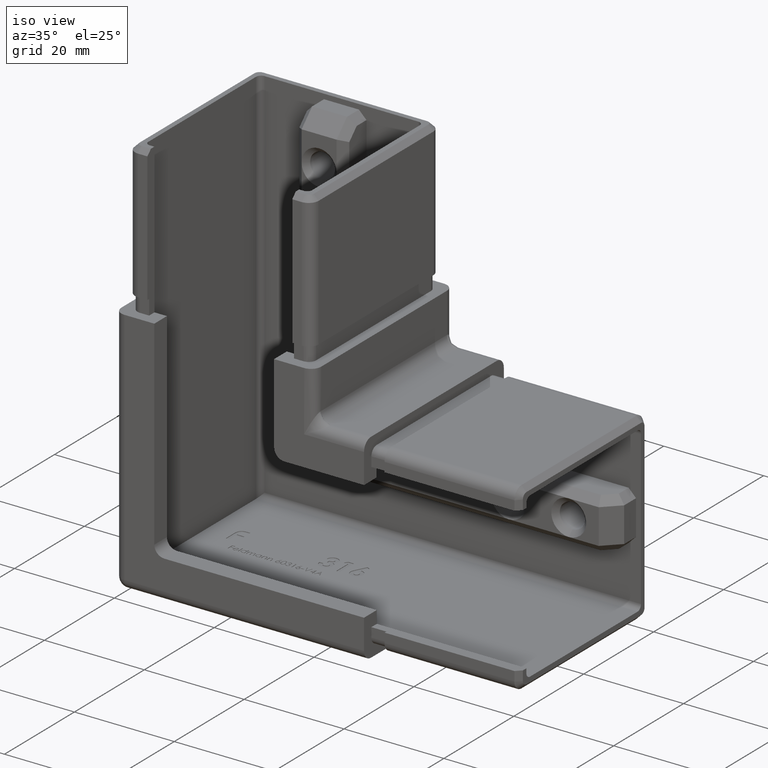
[diagram: clean part render]
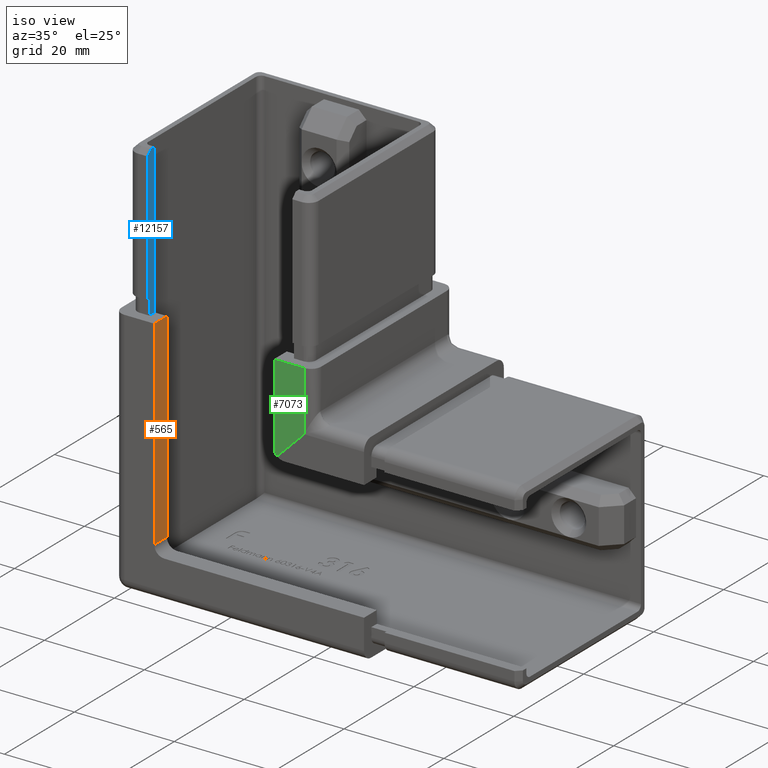
[diagram: same view with three faces highlighted in distinct colors, each labeled with its STEP entity id]
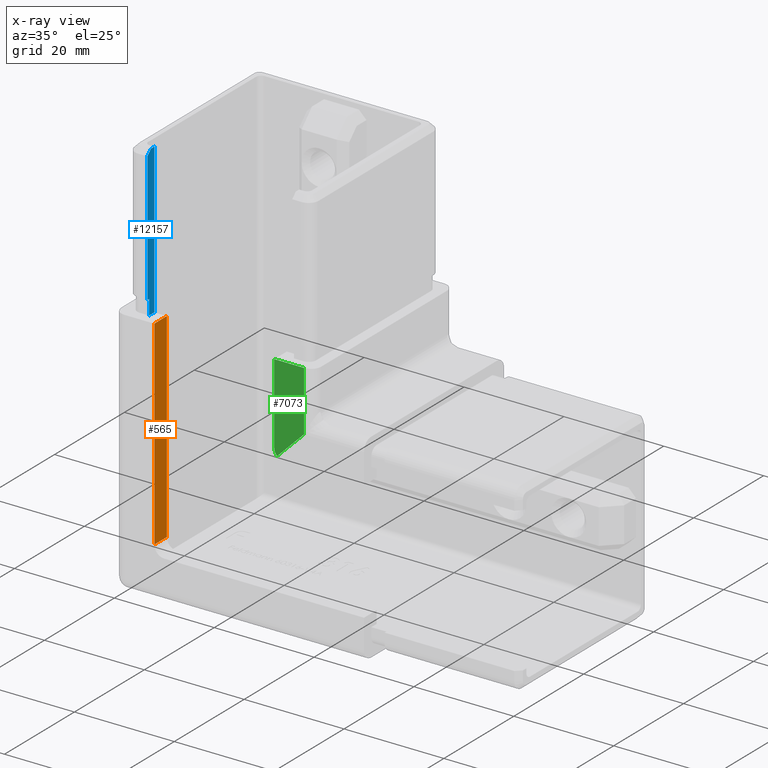
[diagram: x-ray of the same camera — body ghosted, the three highlighted faces saturated]
A machine part, iso view with three faces highlighted in distinct colors.
The next image is the same camera in x-ray (body ghosted, the three faces saturated) — at least one of them is partly hidden behind the body in this view.
Their STEP definitions:

[orange] entity #565 — the highlighted planar face has unit normal (1, 0, 0).
#197 = CARTESIAN_POINT ( 'NONE',  ( -12.00000000000000000, -36.40000000000000568, 30.00000000000000000 ) ) ;
#565 = ADVANCED_FACE ( 'NONE', ( #3925 ), #12228, .T. ) ;
#1209 = VECTOR ( 'NONE', #16442, 1000.000000000000000 ) ;
#1294 = ORIENTED_EDGE ( 'NONE', *, *, #18901, .T. ) ;
#3853 = ORIENTED_EDGE ( 'NONE', *, *, #7586, .T. ) ;
#3925 = FACE_OUTER_BOUND ( 'NONE', #18305, .T. ) ;
#4144 = LINE ( 'NONE', #7569, #14500 ) ;
#4630 = DIRECTION ( 'NONE',  ( 0.000000000000000000, 0.000000000000000000, -1.000000000000000000 ) ) ;
#4786 = DIRECTION ( 'NONE',  ( 0.000000000000000000, 0.000000000000000000, -1.000000000000000000 ) ) ;
#4854 = VECTOR ( 'NONE', #4786, 1000.000000000000000 ) ;
#5752 = VECTOR ( 'NONE', #5804, 1000.000000000000000 ) ;
#5804 = DIRECTION ( 'NONE',  ( 0.000000000000000000, -1.000000000000000000, 0.000000000000000000 ) ) ;
#6099 = LINE ( 'NONE', #7652, #1209 ) ;
#6637 = VERTEX_POINT ( 'NONE', #9075 ) ;
#7569 = CARTESIAN_POINT ( 'NONE',  ( -12.00000000000000000, -36.40000000000000568, -10.00000000000000178 ) ) ;
#7586 = EDGE_CURVE ( 'NONE', #11527, #19473, #6099, .T. ) ;
#7652 = CARTESIAN_POINT ( 'NONE',  ( -12.00000000000000000, -40.00000000000000000, 30.00000000000000000 ) ) ;
#7875 = LINE ( 'NONE', #10153, #5752 ) ;
#7878 = CARTESIAN_POINT ( 'NONE',  ( -12.00000000000000000, -40.00000000000000000, 30.00000000000000000 ) ) ;
#8851 = LINE ( 'NONE', #15351, #4854 ) ;
#8995 = AXIS2_PLACEMENT_3D ( 'NONE', #197, #18100, #4630 ) ;
#9075 = CARTESIAN_POINT ( 'NONE',  ( -12.00000000000000000, -36.40000000000000568, 30.00000000000000000 ) ) ;
#10153 = CARTESIAN_POINT ( 'NONE',  ( -12.00000000000000000, -36.40000000000000568, 30.00000000000000000 ) ) ;
#10919 = VERTEX_POINT ( 'NONE', #14609 ) ;
#11527 = VERTEX_POINT ( 'NONE', #7878 ) ;
#12228 = PLANE ( 'NONE',  #8995 ) ;
#12785 = ORIENTED_EDGE ( 'NONE', *, *, #14354, .T. ) ;
#13530 = DIRECTION ( 'NONE',  ( 0.000000000000000000, 1.000000000000000000, -0.000000000000000000 ) ) ;
#13815 = EDGE_CURVE ( 'NONE', #6637, #10919, #8851, .T. ) ;
#14044 = ORIENTED_EDGE ( 'NONE', *, *, #13815, .F. ) ;
#14354 = EDGE_CURVE ( 'NONE', #19473, #10919, #4144, .T. ) ;
#14500 = VECTOR ( 'NONE', #13530, 1000.000000000000000 ) ;
#14609 = CARTESIAN_POINT ( 'NONE',  ( -12.00000000000000000, -36.40000000000000568, -10.00000000000000178 ) ) ;
#14853 = CARTESIAN_POINT ( 'NONE',  ( -12.00000000000000000, -40.00000000000000000, -10.00000000000000178 ) ) ;
#15351 = CARTESIAN_POINT ( 'NONE',  ( -12.00000000000000000, -36.40000000000000568, 30.00000000000000000 ) ) ;
#16442 = DIRECTION ( 'NONE',  ( 0.000000000000000000, 0.000000000000000000, -1.000000000000000000 ) ) ;
#18100 = DIRECTION ( 'NONE',  ( 1.000000000000000000, 0.000000000000000000, 0.000000000000000000 ) ) ;
#18305 = EDGE_LOOP ( 'NONE', ( #3853, #12785, #14044, #1294 ) ) ;
#18901 = EDGE_CURVE ( 'NONE', #6637, #11527, #7875, .T. ) ;
#19473 = VERTEX_POINT ( 'NONE', #14853 ) ;

[blue] entity #12157 — the highlighted planar face has unit normal (-1, 0, 0).
#7 = LINE ( 'NONE', #7258, #15524 ) ;
#172 = CARTESIAN_POINT ( 'NONE',  ( -14.49999999999999822, -38.40000000000001279, 58.99999999999999289 ) ) ;
#584 = CARTESIAN_POINT ( 'NONE',  ( -14.49999999999999822, -36.40000000000000568, 60.00000000000000000 ) ) ;
#1106 = LINE ( 'NONE', #14181, #8656 ) ;
#1169 = DIRECTION ( 'NONE',  ( -0.000000000000000000, -0.000000000000000000, -1.000000000000000000 ) ) ;
#1186 = DIRECTION ( 'NONE',  ( 0.000000000000000000, 0.000000000000000000, 1.000000000000000000 ) ) ;
#1637 = VECTOR ( 'NONE', #3469, 1000.000000000000000 ) ;
#1993 = CARTESIAN_POINT ( 'NONE',  ( -14.49999999999999822, -36.40000000000000568, 60.00000000000000000 ) ) ;
#2360 = LINE ( 'NONE', #1993, #1637 ) ;
#2465 = EDGE_LOOP ( 'NONE', ( #16844, #11641, #3373, #13791, #17770, #10610, #15420 ) ) ;
#3003 = CARTESIAN_POINT ( 'NONE',  ( -14.49999999999999822, -37.90000000000001279, 33.00000000000000000 ) ) ;
#3373 = ORIENTED_EDGE ( 'NONE', *, *, #10941, .T. ) ;
#3469 = DIRECTION ( 'NONE',  ( -0.000000000000000000, 1.000000000000000000, -0.000000000000000000 ) ) ;
#4378 = AXIS2_PLACEMENT_3D ( 'NONE', #5670, #17450, #1186 ) ;
#4447 = EDGE_CURVE ( 'NONE', #8680, #18215, #12741, .T. ) ;
#5407 = EDGE_CURVE ( 'NONE', #16689, #13790, #7, .T. ) ;
#5670 = CARTESIAN_POINT ( 'NONE',  ( -14.49999999999999822, -36.40000000000000568, 60.00000000000000000 ) ) ;
#5866 = LINE ( 'NONE', #13286, #17401 ) ;
#6398 = VECTOR ( 'NONE', #6781, 1000.000000000000000 ) ;
#6781 = DIRECTION ( 'NONE',  ( 0.000000000000000000, 0.000000000000000000, 1.000000000000000000 ) ) ;
#6831 = VECTOR ( 'NONE', #17611, 1000.000000000000000 ) ;
#7137 = CARTESIAN_POINT ( 'NONE',  ( -14.49999999999999822, -37.90000000000001279, 30.00000000000000000 ) ) ;
#7258 = CARTESIAN_POINT ( 'NONE',  ( -14.50000000000000000, -37.40000000000001279, 60.00000000000000000 ) ) ;
#7319 = DIRECTION ( 'NONE',  ( 0.000000000000000000, -0.7071067811865451302, -0.7071067811865500152 ) ) ;
#7798 = LINE ( 'NONE', #11887, #17671 ) ;
#8656 = VECTOR ( 'NONE', #17142, 1000.000000000000000 ) ;
#8680 = VERTEX_POINT ( 'NONE', #7137 ) ;
#9251 = EDGE_CURVE ( 'NONE', #15987, #18048, #7798, .T. ) ;
#9722 = CARTESIAN_POINT ( 'NONE',  ( -14.49999999999999822, -37.40000000000001279, 60.00000000000000000 ) ) ;
#9896 = EDGE_CURVE ( 'NONE', #16689, #15987, #2360, .T. ) ;
#10468 = VERTEX_POINT ( 'NONE', #13059 ) ;
#10610 = ORIENTED_EDGE ( 'NONE', *, *, #12368, .T. ) ;
#10799 = LINE ( 'NONE', #16147, #6831 ) ;
#10941 = EDGE_CURVE ( 'NONE', #13790, #10468, #5866, .T. ) ;
#11244 = EDGE_CURVE ( 'NONE', #18215, #10468, #10799, .T. ) ;
#11641 = ORIENTED_EDGE ( 'NONE', *, *, #5407, .T. ) ;
#11887 = CARTESIAN_POINT ( 'NONE',  ( -14.49999999999999822, -36.40000000000000568, 60.00000000000000000 ) ) ;
#12157 = ADVANCED_FACE ( 'NONE', ( #19238 ), #15924, .F. ) ;
#12368 = EDGE_CURVE ( 'NONE', #8680, #18048, #1106, .T. ) ;
#12661 = CARTESIAN_POINT ( 'NONE',  ( -14.49999999999999822, -36.40000000000000568, 30.00000000000000000 ) ) ;
#12740 = CARTESIAN_POINT ( 'NONE',  ( -14.49999999999999822, -37.90000000000001279, 60.00000000000000000 ) ) ;
#12741 = LINE ( 'NONE', #12740, #6398 ) ;
#13059 = CARTESIAN_POINT ( 'NONE',  ( -14.49999999999999822, -38.40000000000001279, 33.00000000000000000 ) ) ;
#13286 = CARTESIAN_POINT ( 'NONE',  ( -14.49999999999999822, -38.40000000000001279, 60.00000000000000000 ) ) ;
#13790 = VERTEX_POINT ( 'NONE', #172 ) ;
#13791 = ORIENTED_EDGE ( 'NONE', *, *, #11244, .F. ) ;
#14181 = CARTESIAN_POINT ( 'NONE',  ( -14.49999999999999822, -36.40000000000000568, 30.00000000000000000 ) ) ;
#14858 = DIRECTION ( 'NONE',  ( -0.000000000000000000, -0.000000000000000000, -1.000000000000000000 ) ) ;
#15420 = ORIENTED_EDGE ( 'NONE', *, *, #9251, .F. ) ;
#15524 = VECTOR ( 'NONE', #7319, 1000.000000000000114 ) ;
#15924 = PLANE ( 'NONE',  #4378 ) ;
#15987 = VERTEX_POINT ( 'NONE', #584 ) ;
#16147 = CARTESIAN_POINT ( 'NONE',  ( -14.49999999999999822, -36.40000000000000568, 33.00000000000000000 ) ) ;
#16689 = VERTEX_POINT ( 'NONE', #9722 ) ;
#16844 = ORIENTED_EDGE ( 'NONE', *, *, #9896, .F. ) ;
#17142 = DIRECTION ( 'NONE',  ( -0.000000000000000000, 1.000000000000000000, -0.000000000000000000 ) ) ;
#17401 = VECTOR ( 'NONE', #14858, 1000.000000000000000 ) ;
#17450 = DIRECTION ( 'NONE',  ( -1.000000000000000000, 0.000000000000000000, 0.000000000000000000 ) ) ;
#17611 = DIRECTION ( 'NONE',  ( 0.000000000000000000, -1.000000000000000000, 0.000000000000000000 ) ) ;
#17671 = VECTOR ( 'NONE', #1169, 1000.000000000000000 ) ;
#17770 = ORIENTED_EDGE ( 'NONE', *, *, #4447, .F. ) ;
#18048 = VERTEX_POINT ( 'NONE', #12661 ) ;
#18215 = VERTEX_POINT ( 'NONE', #3003 ) ;
#19238 = FACE_OUTER_BOUND ( 'NONE', #2465, .T. ) ;

[green] entity #7073 — the highlighted planar face has unit normal (-0, -1, 0).
#164 = EDGE_CURVE ( 'NONE', #5479, #19163, #16112, .T. ) ;
#1141 = ORIENTED_EDGE ( 'NONE', *, *, #8737, .T. ) ;
#1510 = CARTESIAN_POINT ( 'NONE',  ( 20.99999999999999645, -40.00000000000000711, 20.99999999999999645 ) ) ;
#3337 = VERTEX_POINT ( 'NONE', #15162 ) ;
#3342 = LINE ( 'NONE', #1510, #11797 ) ;
#3818 = CARTESIAN_POINT ( 'NONE',  ( 14.00000000000000000, -40.00000000000000000, 13.99999999999999822 ) ) ;
#3830 = VECTOR ( 'NONE', #7518, 1000.000000000000000 ) ;
#4965 = CARTESIAN_POINT ( 'NONE',  ( 12.58578643762690419, -40.00000000000000000, 12.58578643762690419 ) ) ;
#5341 = ORIENTED_EDGE ( 'NONE', *, *, #8795, .T. ) ;
#5479 = VERTEX_POINT ( 'NONE', #6257 ) ;
#6257 = CARTESIAN_POINT ( 'NONE',  ( 18.00000000000000355, -40.00000000000000711, 30.00000000000000000 ) ) ;
#7023 = CIRCLE ( 'NONE', #16201, 2.000000000000000000 ) ;
#7073 = ADVANCED_FACE ( 'NONE', ( #12671 ), #16921, .T. ) ;
#7518 = DIRECTION ( 'NONE',  ( -1.000000000000000000, 1.156482317317871133E-15, 0.000000000000000000 ) ) ;
#7767 = VECTOR ( 'NONE', #19246, 1000.000000000000000 ) ;
#7936 = DIRECTION ( 'NONE',  ( -1.156482317317871331E-15, -1.000000000000000000, 0.000000000000000000 ) ) ;
#8222 = DIRECTION ( 'NONE',  ( -1.156482317317871331E-15, -1.000000000000000000, -0.000000000000000000 ) ) ;
#8471 = VERTEX_POINT ( 'NONE', #4965 ) ;
#8737 = EDGE_CURVE ( 'NONE', #5479, #3337, #15077, .T. ) ;
#8795 = EDGE_CURVE ( 'NONE', #8471, #19163, #3342, .T. ) ;
#9241 = DIRECTION ( 'NONE',  ( 1.000000000000000000, -1.156482317317871331E-15, 0.000000000000000000 ) ) ;
#9566 = EDGE_LOOP ( 'NONE', ( #16880, #13625, #5341, #11151, #1141 ) ) ;
#9720 = DIRECTION ( 'NONE',  ( 1.000000000000000000, 0.000000000000000000, 0.000000000000000000 ) ) ;
#10340 = LINE ( 'NONE', #14650, #7767 ) ;
#11151 = ORIENTED_EDGE ( 'NONE', *, *, #164, .F. ) ;
#11216 = EDGE_CURVE ( 'NONE', #3337, #14219, #10340, .T. ) ;
#11324 = CARTESIAN_POINT ( 'NONE',  ( 18.00000000000000355, -40.00000000000000711, 18.00000000000000355 ) ) ;
#11410 = CARTESIAN_POINT ( 'NONE',  ( 12.00000000000000000, -40.00000000000000000, 13.99999999999999822 ) ) ;
#11797 = VECTOR ( 'NONE', #15061, 1000.000000000000114 ) ;
#12374 = EDGE_CURVE ( 'NONE', #14219, #8471, #7023, .T. ) ;
#12671 = FACE_OUTER_BOUND ( 'NONE', #9566, .T. ) ;
#13023 = AXIS2_PLACEMENT_3D ( 'NONE', #18311, #7936, #9241 ) ;
#13108 = CARTESIAN_POINT ( 'NONE',  ( 12.00000000000000000, -40.00000000000000000, 30.00000000000000000 ) ) ;
#13625 = ORIENTED_EDGE ( 'NONE', *, *, #12374, .T. ) ;
#14219 = VERTEX_POINT ( 'NONE', #11410 ) ;
#14650 = CARTESIAN_POINT ( 'NONE',  ( 12.00000000000000000, -40.00000000000000000, 30.00000000000000000 ) ) ;
#15061 = DIRECTION ( 'NONE',  ( 0.7071067811865474617, -8.177564888977994417E-16, 0.7071067811865474617 ) ) ;
#15077 = LINE ( 'NONE', #13108, #3830 ) ;
#15162 = CARTESIAN_POINT ( 'NONE',  ( 12.00000000000000000, -40.00000000000000000, 30.00000000000000000 ) ) ;
#16112 = LINE ( 'NONE', #18161, #17544 ) ;
#16201 = AXIS2_PLACEMENT_3D ( 'NONE', #3818, #8222, #9720 ) ;
#16518 = DIRECTION ( 'NONE',  ( 0.000000000000000000, 0.000000000000000000, -1.000000000000000000 ) ) ;
#16880 = ORIENTED_EDGE ( 'NONE', *, *, #11216, .T. ) ;
#16921 = PLANE ( 'NONE',  #13023 ) ;
#17544 = VECTOR ( 'NONE', #16518, 1000.000000000000000 ) ;
#18161 = CARTESIAN_POINT ( 'NONE',  ( 18.00000000000000355, -40.00000000000000711, 30.00000000000000000 ) ) ;
#18311 = CARTESIAN_POINT ( 'NONE',  ( 12.00000000000000000, -40.00000000000000000, 30.00000000000000000 ) ) ;
#19163 = VERTEX_POINT ( 'NONE', #11324 ) ;
#19246 = DIRECTION ( 'NONE',  ( 0.000000000000000000, 0.000000000000000000, -1.000000000000000000 ) ) ;